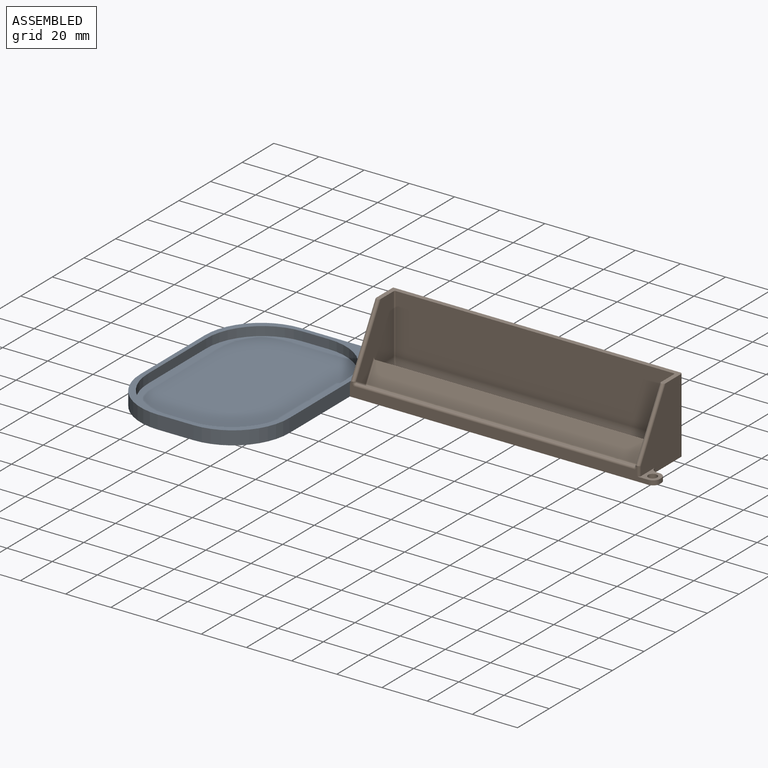
[diagram: assembled view]
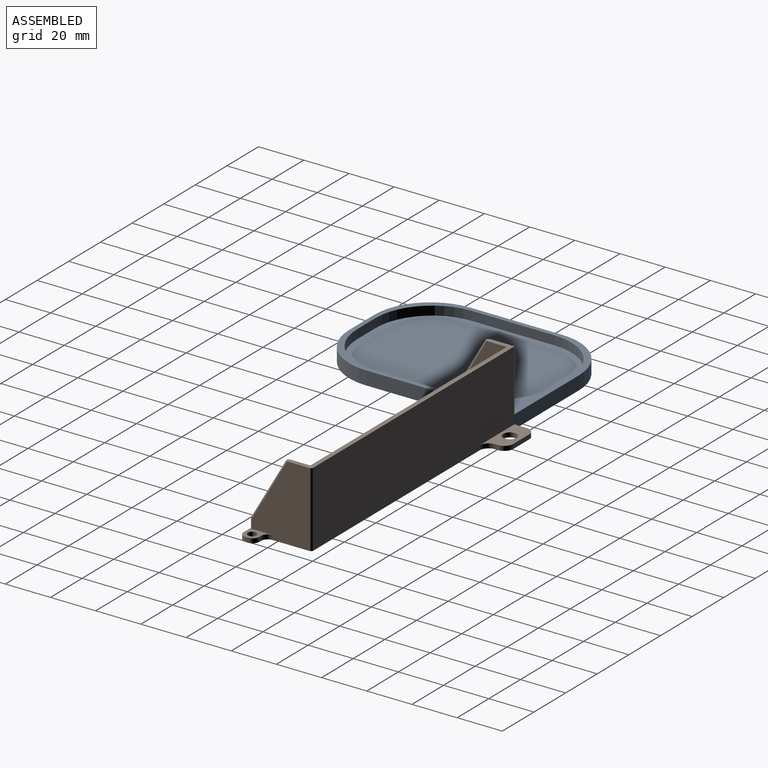
[diagram: assembled view, second angle]
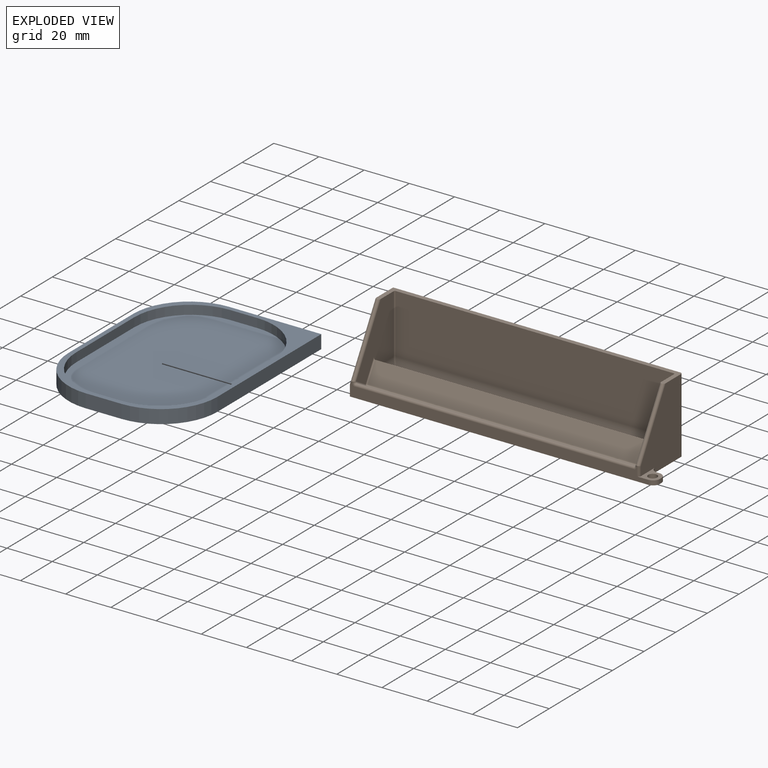
[diagram: exploded view]
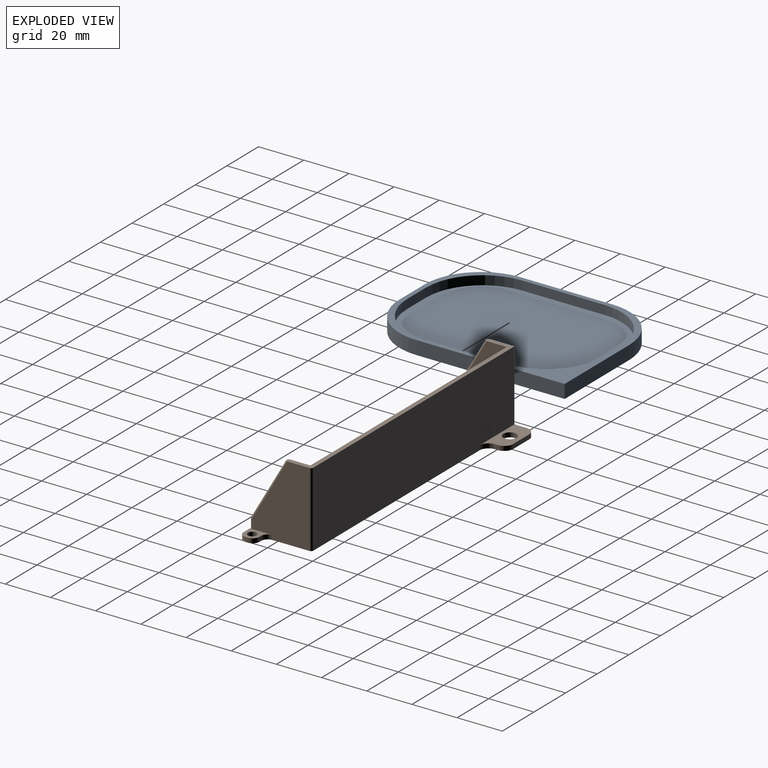
[diagram: exploded view, second angle]
ASSEMBLY  parts=2 mates=3
PART A: 18 faces, bbox 65.9x90.6x6 mm
  f0: plane 90.6x65.85mm, normal (0,0,-1), area 5563.6mm2, adj f6,f7,f8,f9,f15,f16,f17
  f1: plane 11.85x4mm, normal (0,-1,0), area 47.4mm2, adj f5,f10,f11,f13
  f2: plane 36.6x4mm, normal (1,0,0), area 146.4mm2, adj f5,f10,f11,f12
  f3: plane 11.85x4mm, normal (0,1,0), area 47.4mm2, adj f5,f10,f12,f14
  f4: plane 36.6x4mm, normal (-1,0,0), area 146.4mm2, adj f5,f10,f13,f14
  f5: plane 90.6x65.85mm, normal (0,0,1), area 743.9mm2, adj f1,f2,f3,f4,f6,f7,f8,f9
  f6: plane 65.6x6mm, normal (1,0,0), area 393.6mm2, adj f0,f5,f7,f15
  f7: plane 40.85x6mm, normal (0,1,0), area 245.1mm2, adj f0,f5,f6,f16
  f8: plane 15.85x6mm, normal (0,-1,0), area 95.1mm2, adj f0,f5,f15,f17
  f9: plane 40.6x6mm, normal (-1,0,0), area 243.6mm2, adj f0,f5,f16,f17
  f10: plane 86.6x61.85mm, normal (0,0,1), area 4819.7mm2, adj f1,f2,f3,f4,f11,f12,f13,f14
  f11: cylinder r=25mm len=25mm, axis (0,0,-1), area 157.1mm2, adj f1,f2,f5,f10
  f12: cylinder r=25mm len=25mm, axis (0,0,1), area 157.1mm2, adj f2,f3,f5,f10
  f13: cylinder r=25mm len=25mm, axis (0,0,1), area 157.1mm2, adj f1,f4,f5,f10
  f14: cylinder r=25mm len=25mm, axis (0,0,-1), area 157.1mm2, adj f3,f4,f5,f10
  f15: cylinder r=25mm len=25mm, axis (0,0,-1), area 235.6mm2, adj f0,f5,f6,f8
  f16: cylinder r=25mm len=25mm, axis (0,0,-1), area 235.6mm2, adj f0,f5,f7,f9
  f17: cylinder r=25mm len=25mm, axis (0,0,-1), area 235.6mm2, adj f0,f5,f8,f9
PART B: 70 faces, bbox 135.5x37.9x34 mm
  f0: plane 33.18x25.36mm, normal (1,0,0), area 609.9mm2, adj f3,f7,f23,f24,f42,f43,f50
  f1: plane 123.1x5.43mm, normal (0,0.5,0.87), area 587.5mm2, adj f28,f30,f31,f46,f59,f60,f61,f62
  f2: plane 114.1x3mm, normal (0,0,1), area 342.3mm2, adj f34,f35,f36,f37
  f3: plane 135.1x36.71mm, normal (0,0,-1), area 3675.9mm2, adj f0,f4,f12,f13,f17,f18,f19,f20
  f4: plane 132.1x6.25mm, normal (0,-1,0), area 586.6mm2, adj f3,f12,f23,f26,f42,f45,f46,f47
  f5: plane 123.1x8.23mm, normal (0,-0.87,0.5), area 1169.4mm2, adj f6,f27,f30,f33
  f6: plane 124.46x5.02mm, normal (0,1,0), area 454.5mm2, adj f5,f9,f10,f27,f33,f34
  f7: plane 128.1x11.82mm, normal (0,0,1), area 294.4mm2, adj f0,f9,f10,f12,f13,f14,f38,f40
  f8: plane 0.44x0.25mm, normal (0,-0.87,0.5), area 0mm2, adj f43,f44,f45
  f9: plane 30.49x23.75mm, normal (-1,0,0), area 425.9mm2, adj f6,f7,f27,f28,f35,f38,f43
  f10: plane 30.49x23.75mm, normal (1,0,0), area 425.9mm2, adj f6,f7,f31,f33,f36,f40,f47
  f11: plane 0.44x0.25mm, normal (0,-0.87,0.5), area 0mm2, adj f47,f48,f49
  f12: plane 33.18x32.71mm, normal (-1,0,0), area 676.9mm2, adj f3,f4,f7,f13,f16,f47,f69
  f13: plane 127.1x33.18mm, normal (0,1,0), area 4172.8mm2, adj f3,f7,f12,f16,f50,f67
  f14: plane 123.1x26.18mm, normal (0,-1,0), area 3222.4mm2, adj f7,f37,f38,f40
  f15: plane 29x3.46mm, normal (0,0.5,0.87), area 115.8mm2, adj f51,f52,f53,f54,f55,f56,f57,f58
  f16: plane 22x9.35mm, normal (0,0,1), area 136.6mm2, adj f12,f13,f17,f18,f19,f67,f68,f69
  f17: plane 2x1.35mm, normal (1,0,0), area 2.7mm2, adj f3,f16,f67,f68
  f18: plane 10x2mm, normal (0,1,0), area 20mm2, adj f3,f16,f68,f69
  f19: cylinder r=3mm len=6mm, axis (0,0,1), area 37.7mm2, adj f3,f16
  f20: plane 2x1mm, normal (0,1,0), area 2mm2, adj f3,f23,f24,f25
  f21: plane 2x1mm, normal (1,0,0), area 2mm2, adj f3,f23,f25,f26
  f22: cylinder r=2mm len=4mm, axis (0,0,-1), area 25.1mm2, adj f3,f23
  f23: plane 10x8mm, normal (0,0,1), area 34.7mm2, adj f0,f4,f20,f21,f22,f24,f25,f26
  f24: cylinder r=3mm len=3mm, axis (0,0,1), area 9.4mm2, adj f0,f3,f20,f23
  f25: cylinder r=3mm len=3mm, axis (0,0,1), area 9.4mm2, adj f3,f20,f21,f23
  f26: cylinder r=3mm len=3mm, axis (0,0,-1), area 9.4mm2, adj f3,f4,f21,f23
  f27: cylinder r=0.5mm len=9.23mm, axis (0,-0.5,-0.87), area 7.8mm2, adj f5,f6,f9,f29
  f28: cylinder r=0.5mm len=6.31mm, axis (0,-0.87,0.5), area 5.2mm2, adj f1,f9,f29,f44,f45
  f29: sphere r=0.5mm, area 0.4mm2, adj f27,f28,f30
  f30: cylinder r=0.5mm len=123.1mm, axis (1,0,0), area 96.7mm2, adj f1,f5,f29,f32,f63
  f31: cylinder r=0.5mm len=6.31mm, axis (0,-0.87,0.5), area 5.2mm2, adj f1,f10,f32,f48,f49
  f32: sphere r=0.5mm, area 0.4mm2, adj f30,f31,f33
  f33: cylinder r=0.5mm len=9.23mm, axis (0,-0.5,-0.87), area 7.8mm2, adj f5,f6,f10,f32
  f34: cylinder r=5mm len=124.1mm, axis (1,0,0), area 935.4mm2, adj f2,f6,f35,f36
  f35: cylinder r=5mm len=12.5mm, axis (0,1,0), area 60.9mm2, adj f2,f9,f34,f39
  f36: cylinder r=5mm len=12.5mm, axis (0,1,0), area 60.9mm2, adj f2,f10,f34,f41
  f37: cylinder r=5mm len=123.1mm, axis (-1,0,0), area 931.5mm2, adj f2,f14,f39,f41
  f38: cylinder r=0.5mm len=26.18mm, axis (0,0,-1), area 20.6mm2, adj f7,f9,f14,f39
  f39: bspline ~5.72x5mm, area 2.7mm2, adj f35,f37,f38
  f40: cylinder r=0.5mm len=26.18mm, axis (0,0,-1), area 20.6mm2, adj f7,f10,f14,f41
  f41: bspline ~5.18x5mm, area 2.7mm2, adj f36,f37,f40
  f42: cylinder r=1mm len=4.25mm, axis (0,0,-1), area 6.5mm2, adj f0,f4,f23,f43
  f43: cylinder r=1mm len=27.93mm, axis (0,0.5,0.87), area 97.3mm2, adj f0,f7,f8,f9,f42,f44
  f44: torus R=1.5mm, axis (0,0.87,-0.5), area 0.5mm2, adj f8,f28,f43,f45
  f45: bspline ~1.79x1.5mm, area 2.7mm2, adj f4,f8,f28,f44,f46
  f46: cylinder r=1mm len=123.1mm, axis (1,0,0), area 257.8mm2, adj f1,f4,f45,f48
  f47: cylinder r=1mm len=29.43mm, axis (0,0.5,0.87), area 98.5mm2, adj f4,f7,f10,f11,f12,f49
  f48: bspline ~1.82x1.5mm, area 2.7mm2, adj f4,f11,f31,f46,f49
  f49: torus R=1.5mm, axis (0,0.87,-0.5), area 0.5mm2, adj f11,f31,f47,f48
  f50: cylinder r=1mm len=33.18mm, axis (0,0,1), area 52.1mm2, adj f0,f3,f7,f13
  f51: cylinder r=0.5mm len=28mm, axis (-1,0,0), area 22mm2, adj f15,f52,f53,f63
  f52: torus R=0.5mm, axis (0,0.5,0.87), area 1mm2, adj f15,f51,f54,f61
  f53: torus R=0.5mm, axis (0,0.5,0.87), area 1mm2, adj f15,f51,f55,f65
  f54: cylinder r=0.5mm len=2.85mm, axis (0,-0.87,0.5), area 2.4mm2, adj f15,f52,f56,f59
  f55: cylinder r=0.5mm len=2.85mm, axis (0,0.87,-0.5), area 2.4mm2, adj f15,f53,f57,f66
  f56: torus R=0.5mm, axis (0,0.5,0.87), area 1mm2, adj f15,f54,f58,f60
  f57: torus R=0.5mm, axis (0,0.5,0.87), area 1mm2, adj f15,f55,f58,f64
  f58: cylinder r=0.5mm len=28mm, axis (1,0,0), area 22mm2, adj f15,f56,f57,f62
  f59: cylinder r=0.5mm len=2.85mm, axis (0,-0.87,0.5), area 2.4mm2, adj f1,f54,f60,f61
  f60: torus R=1.5mm, axis (0,-0.5,-0.87), area 1.5mm2, adj f1,f56,f59,f62
  f61: torus R=1.5mm, axis (0,-0.5,-0.87), area 1.5mm2, adj f1,f52,f59,f63
  f62: cylinder r=0.5mm len=28mm, axis (1,0,0), area 22mm2, adj f1,f58,f60,f64
  f63: cylinder r=0.5mm len=28mm, axis (-1,0,0), area 22mm2, adj f30,f51,f61,f65
  f64: torus R=1.5mm, axis (0,-0.5,-0.87), area 1.5mm2, adj f1,f57,f62,f66
  f65: torus R=1.5mm, axis (0,-0.5,-0.87), area 1.5mm2, adj f1,f53,f63,f66
  f66: cylinder r=0.5mm len=2.85mm, axis (0,0.87,-0.5), area 2.4mm2, adj f1,f55,f64,f65
  f67: cylinder r=4mm len=4mm, axis (0,0,-1), area 12.6mm2, adj f3,f13,f16,f17
  f68: cylinder r=4mm len=4mm, axis (0,0,1), area 12.6mm2, adj f3,f16,f17,f18
  f69: cylinder r=4mm len=4mm, axis (0,0,-1), area 12.6mm2, adj f3,f12,f16,f18
PLACE A rot(axis=(0.12,0.95,-0.29),0deg) t=(-1.53,-6.02,-66.58)mm
PLACE B rot(axis=(0.12,0.95,-0.29),0deg) t=(95.45,34,-66.58)mm
MATE planar B.f12 <-> A.f6  axis (-1,0,0) through (31.4,28.75,-52.72)mm
MATE planar A.f7 <-> B.f13  axis (0,1,0) through (10.97,39.28,-63.58)mm
MATE planar B.f3 <-> A.f0  axis (0,0,-1) through (94.04,26.18,-66.58)mm
